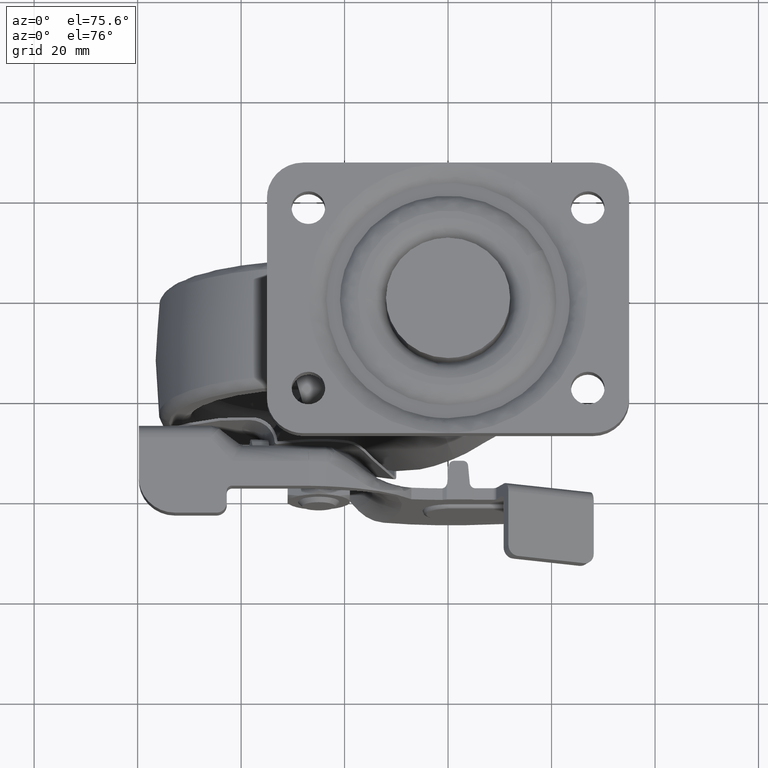
[diagram: clean part render]
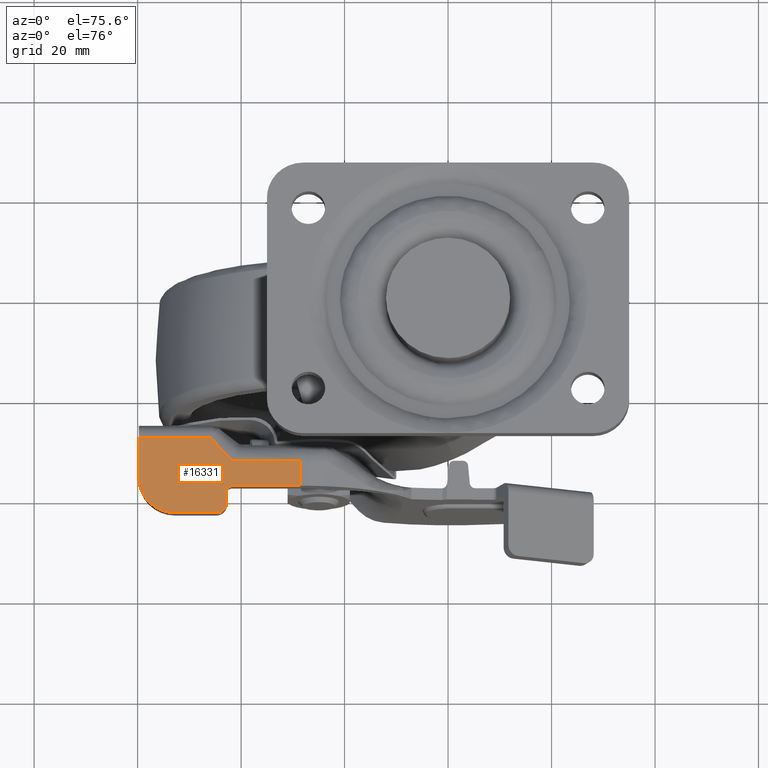
[diagram: same view with one face highlighted and labeled with its STEP entity id]
A machine part, auxiliary view. The second image highlights one B-rep face of the part: STEP entity #16331.
In plain terms, the highlighted face is a freeform B-spline surface patch.
Its self-contained STEP definition (entity closure, byte-faithful):
#11938=CARTESIAN_POINT('',(-41.626570472790753,-23.449981999999949,-35.418818999999999));
#11939=VERTEX_POINT('',#11938);
#12660=CARTESIAN_POINT('',(-45.958967930407802,-18.763691999999949,-35.418818999999999));
#12661=VERTEX_POINT('',#12660);
#12707=CARTESIAN_POINT('',(-59.764315000000003,-18.763691999999949,-35.418819999999997));
#12708=VERTEX_POINT('',#12707);
#12721=CARTESIAN_POINT('',(-45.958967930407802,-18.763691999999949,-35.418818999999999));
#12722=CARTESIAN_POINT('',(-59.764315000000003,-18.763691999999949,-35.418819999999997));
#12723=QUASI_UNIFORM_CURVE('',1,(#12721,#12722),.UNSPECIFIED.,.F.,.U.);
#12724=EDGE_CURVE('',#12661,#12708,#12723,.T.);
#12877=CARTESIAN_POINT('',(-43.792769201599292,-21.106836999999949,-35.418818999999992));
#12878=VERTEX_POINT('',#12877);
#12879=CARTESIAN_POINT('',(-43.792769201599292,-21.106836999999949,-35.418818999999992));
#12880=CARTESIAN_POINT('',(-45.958967930407802,-18.763691999999949,-35.418818999999999));
#12881=QUASI_UNIFORM_CURVE('',1,(#12879,#12880),.UNSPECIFIED.,.F.,.U.);
#12882=EDGE_CURVE('',#12878,#12661,#12881,.T.);
#12884=CARTESIAN_POINT('',(-41.626570472790753,-23.449981999999949,-35.418818999999999));
#12885=CARTESIAN_POINT('',(-43.792769201599292,-21.106836999999949,-35.418818999999992));
#12886=QUASI_UNIFORM_CURVE('',1,(#12884,#12885),.UNSPECIFIED.,.F.,.U.);
#12887=EDGE_CURVE('',#11939,#12878,#12886,.T.);
#12929=CARTESIAN_POINT('',(-28.470928592486750,-23.449981999999949,-35.418819999999997));
#12930=VERTEX_POINT('',#12929);
#12931=CARTESIAN_POINT('',(-28.470928592486750,-23.449981999999949,-35.418819999999997));
#12932=CARTESIAN_POINT('',(-41.626570472790753,-23.449981999999949,-35.418818999999999));
#12933=QUASI_UNIFORM_CURVE('',1,(#12931,#12932),.UNSPECIFIED.,.F.,.U.);
#12934=EDGE_CURVE('',#12930,#11939,#12933,.T.);
#15019=CARTESIAN_POINT('',(-52.764310999999999,-33.763688999999893,-35.418818999999999));
#15020=VERTEX_POINT('',#15019);
#15028=CARTESIAN_POINT('',(-59.764310999999999,-26.763688999999850,-35.418819999999997));
#15029=VERTEX_POINT('',#15028);
#15030=CARTESIAN_POINT('',(-52.764310999999999,-33.763688999999893,-35.418818999999999));
#15031=CARTESIAN_POINT('',(-53.308363619130937,-33.763803644655432,-35.418819038852703));
#15032=CARTESIAN_POINT('',(-54.339155825439420,-33.642917628306613,-35.418819121115490));
#15033=CARTESIAN_POINT('',(-55.670303184254507,-33.175800540383953,-35.418819249562887));
#15034=CARTESIAN_POINT('',(-56.815990081814157,-32.517437823268352,-35.418819378423592));
#15035=CARTESIAN_POINT('',(-57.828752009656142,-31.665351878503930,-35.418819511627063));
#15036=CARTESIAN_POINT('',(-58.649905611985773,-30.626297284887531,-35.418819644499237));
#15037=CARTESIAN_POINT('',(-59.292438314402382,-29.406290297093399,-35.418819777536910));
#15038=CARTESIAN_POINT('',(-59.677139708646123,-28.138143358073702,-35.418819895599803));
#15039=CARTESIAN_POINT('',(-59.764336997596622,-27.193199162712709,-35.418819969321312));
#15040=CARTESIAN_POINT('',(-59.764310999999999,-26.763688999999850,-35.418819999999997));
#15041=B_SPLINE_CURVE_WITH_KNOTS('',3,(#15030,#15031,#15032,#15033,#15034,#15035,#15036,#15037,#15038,#15039,#15040),.UNSPECIFIED.,.F.,.U.,(4,1,1,1,1,1,1,1,4),(0.000000165227183,1.632141269082625,3.092532604874314,4.209273737714641,5.583675335863367,7.044074544524126,8.160827514264760,9.707098330585110,10.995643280139261),.UNSPECIFIED.);
#15042=EDGE_CURVE('',#15020,#15029,#15041,.T.);
#15095=CARTESIAN_POINT('',(-41.764307000000201,-28.382372000000000,-35.418819999999997));
#15096=VERTEX_POINT('',#15095);
#15102=CARTESIAN_POINT('',(-42.764307000000201,-29.382372174532900,-35.418819999999997));
#15103=VERTEX_POINT('',#15102);
#15104=CARTESIAN_POINT('',(-42.764307000000201,-29.382372174532900,-35.418819999999997));
#15105=CARTESIAN_POINT('',(-42.764372282054950,-29.267834426067811,-35.418819999999947));
#15106=CARTESIAN_POINT('',(-42.721716610452198,-29.022413747694952,-35.418820000000053));
#15107=CARTESIAN_POINT('',(-42.524635872832413,-28.693274642660320,-35.418819999999982));
#15108=CARTESIAN_POINT('',(-42.189534959027668,-28.444967621113381,-35.418819999999997));
#15109=CARTESIAN_POINT('',(-41.911616567194571,-28.382144031158791,-35.418820000000053));
#15110=CARTESIAN_POINT('',(-41.764307000000201,-28.382372000000000,-35.418819999999997));
#15111=B_SPLINE_CURVE_WITH_KNOTS('',3,(#15104,#15105,#15106,#15107,#15108,#15109,#15110),.UNSPECIFIED.,.F.,.U.,(4,1,1,1,4),(0.000000231888153,0.343645984488735,0.736389050346936,1.129122859436280,1.570953981671661),.UNSPECIFIED.);
#15112=EDGE_CURVE('',#15103,#15096,#15111,.T.);
#15128=CARTESIAN_POINT('',(-42.764307000000201,-31.763688999999900,-35.418819999999997));
#15129=VERTEX_POINT('',#15128);
#15130=CARTESIAN_POINT('',(-42.764307000000201,-29.382372174532900,-35.418819999999997));
#15131=CARTESIAN_POINT('',(-42.764307000000201,-31.763688999999900,-35.418819999999997));
#15132=QUASI_UNIFORM_CURVE('',1,(#15130,#15131),.UNSPECIFIED.,.F.,.U.);
#15133=EDGE_CURVE('',#15103,#15129,#15132,.T.);
#15165=CARTESIAN_POINT('',(-44.764307104719947,-33.763688999999893,-35.418819999999997));
#15166=VERTEX_POINT('',#15165);
#15167=CARTESIAN_POINT('',(-42.764307000000201,-31.763688999999900,-35.418819999999997));
#15168=CARTESIAN_POINT('',(-42.764225959246168,-31.960041529597738,-35.418819999999982));
#15169=CARTESIAN_POINT('',(-42.815325406211983,-32.303607459718627,-35.418820000000053));
#15170=CARTESIAN_POINT('',(-43.016403040919222,-32.772678033083587,-35.418819999999869));
#15171=CARTESIAN_POINT('',(-43.301189874129463,-33.156703103086521,-35.418820000000302));
#15172=CARTESIAN_POINT('',(-43.670777376222702,-33.459981076307812,-35.418819999999620));
#15173=CARTESIAN_POINT('',(-44.158989434024342,-33.698275212165399,-35.418820000000217));
#15174=CARTESIAN_POINT('',(-44.535206136709760,-33.763864858573122,-35.418819999999897));
#15175=CARTESIAN_POINT('',(-44.764307104719947,-33.763688999999893,-35.418819999999997));
#15176=B_SPLINE_CURVE_WITH_KNOTS('',3,(#15167,#15168,#15169,#15170,#15171,#15172,#15173,#15174,#15175),.UNSPECIFIED.,.F.,.U.,(4,1,1,1,1,1,4),(0.000000287079302,0.589049672674518,1.030861985270600,1.521787427871412,2.012607690160147,2.454432833696525,3.141671547721586),.UNSPECIFIED.);
#15177=EDGE_CURVE('',#15129,#15166,#15176,.T.);
#15224=CARTESIAN_POINT('',(-28.470928592486750,-28.382372000000000,-35.418819999999997));
#15225=VERTEX_POINT('',#15224);
#15233=CARTESIAN_POINT('',(-28.470928592486750,-28.382372000000000,-35.418819999999997));
#15234=CARTESIAN_POINT('',(-41.764307000000201,-28.382372000000000,-35.418819999999997));
#15235=QUASI_UNIFORM_CURVE('',1,(#15233,#15234),.UNSPECIFIED.,.F.,.U.);
#15236=EDGE_CURVE('',#15225,#15096,#15235,.T.);
#16300=CARTESIAN_POINT('',(-26.907823414564280,-34.512936796157113,-35.418818999999999));
#16301=CARTESIAN_POINT('',(-61.327420457707149,-34.512936796157113,-35.418818999999999));
#16302=CARTESIAN_POINT('',(-26.907823414564280,-18.014442996848921,-35.418818999999999));
#16303=CARTESIAN_POINT('',(-61.327420457707149,-18.014442996848921,-35.418818999999999));
#16304=B_SPLINE_SURFACE_WITH_KNOTS('',1,1,((#16300,#16302),(#16301,#16303)),.UNSPECIFIED.,.F.,.F.,.U.,(2,2),(2,2),(0.0,34.419597043142872),(0.0,16.498493799308189),.UNSPECIFIED.);
#16305=ORIENTED_EDGE('',*,*,#12887,.T.);
#16306=ORIENTED_EDGE('',*,*,#12882,.T.);
#16307=ORIENTED_EDGE('',*,*,#12724,.T.);
#16308=CARTESIAN_POINT('',(-59.764315000000003,-18.763691999999949,-35.418819999999997));
#16309=CARTESIAN_POINT('',(-59.764310999999999,-26.763688999999850,-35.418819999999997));
#16310=QUASI_UNIFORM_CURVE('',1,(#16308,#16309),.UNSPECIFIED.,.F.,.U.);
#16311=EDGE_CURVE('',#12708,#15029,#16310,.T.);
#16312=ORIENTED_EDGE('',*,*,#16311,.T.);
#16313=ORIENTED_EDGE('',*,*,#15042,.F.);
#16314=CARTESIAN_POINT('',(-52.764310999999999,-33.763688999999893,-35.418818999999999));
#16315=CARTESIAN_POINT('',(-44.764307104719947,-33.763688999999893,-35.418819999999997));
#16316=QUASI_UNIFORM_CURVE('',1,(#16314,#16315),.UNSPECIFIED.,.F.,.U.);
#16317=EDGE_CURVE('',#15020,#15166,#16316,.T.);
#16318=ORIENTED_EDGE('',*,*,#16317,.T.);
#16319=ORIENTED_EDGE('',*,*,#15177,.F.);
#16320=ORIENTED_EDGE('',*,*,#15133,.F.);
#16321=ORIENTED_EDGE('',*,*,#15112,.T.);
#16322=ORIENTED_EDGE('',*,*,#15236,.F.);
#16323=CARTESIAN_POINT('',(-28.470928592486750,-23.449981999999949,-35.418819999999997));
#16324=CARTESIAN_POINT('',(-28.470928592486750,-28.382372000000000,-35.418819999999997));
#16325=QUASI_UNIFORM_CURVE('',1,(#16323,#16324),.UNSPECIFIED.,.F.,.U.);
#16326=EDGE_CURVE('',#12930,#15225,#16325,.T.);
#16327=ORIENTED_EDGE('',*,*,#16326,.F.);
#16328=ORIENTED_EDGE('',*,*,#12934,.T.);
#16329=EDGE_LOOP('',(#16305,#16306,#16307,#16312,#16313,#16318,#16319,#16320,#16321,#16322,#16327,#16328));
#16330=FACE_OUTER_BOUND('',#16329,.T.);
#16331=ADVANCED_FACE('',(#16330),#16304,.F.);